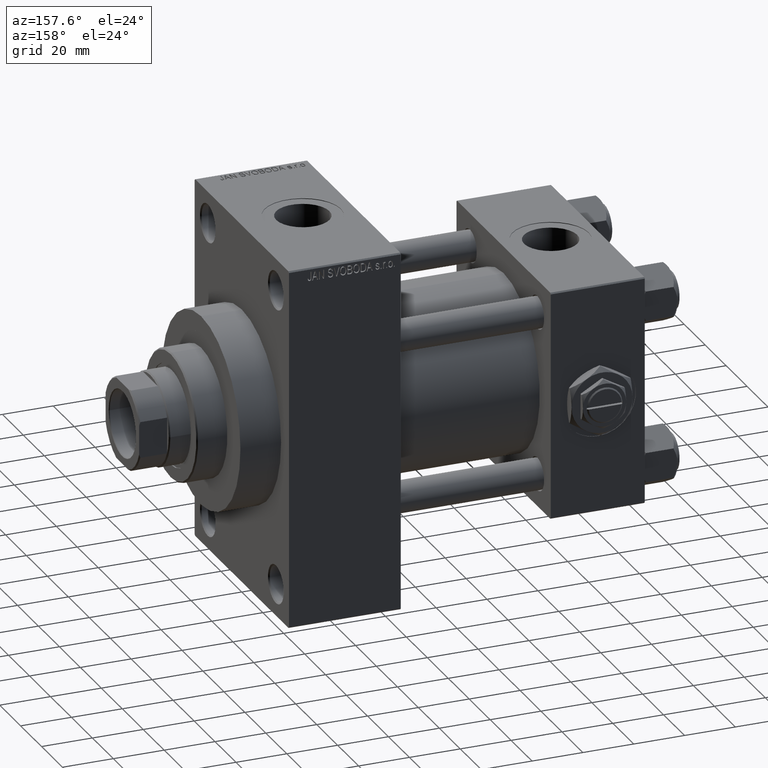
[diagram: clean part render]
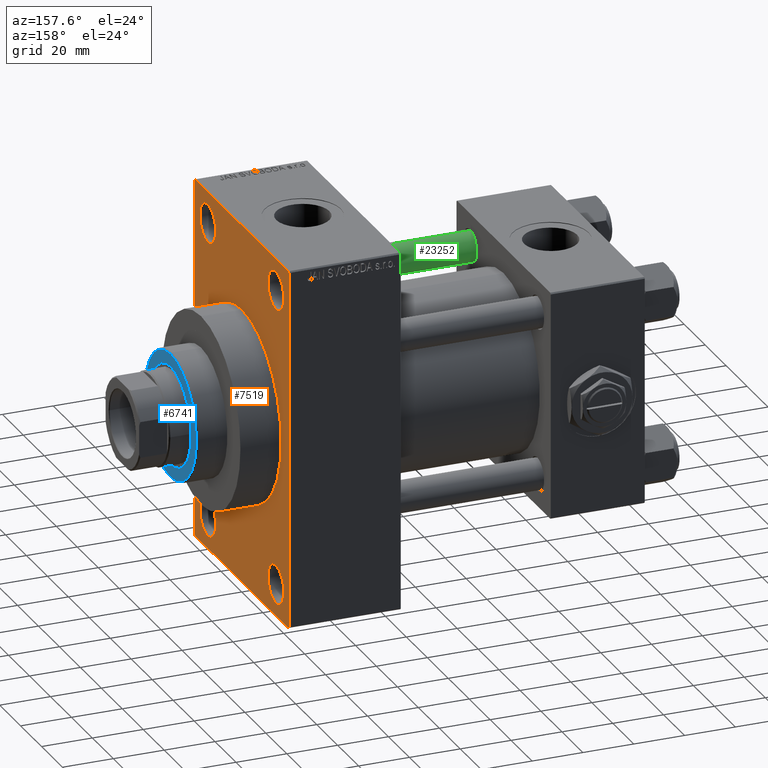
[diagram: same view with three faces highlighted in distinct colors, each labeled with its STEP entity id]
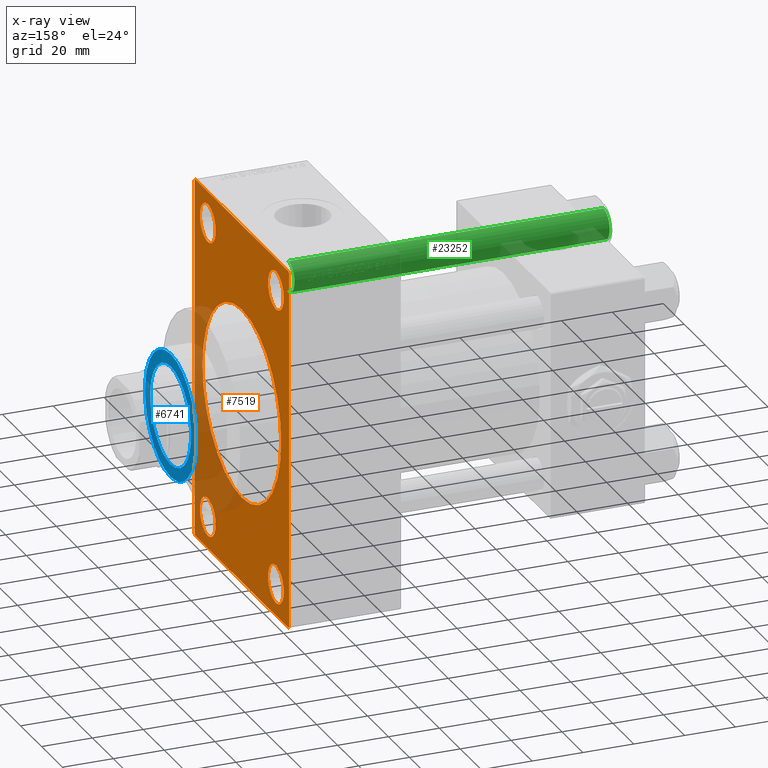
[diagram: x-ray of the same camera — body ghosted, the three highlighted faces saturated]
A machine part, auxiliary view with three faces highlighted in distinct colors.
The next image is the same camera in x-ray (body ghosted, the three faces saturated) — at least one of them is partly hidden behind the body in this view.
Their STEP definitions:

[orange] entity #7519 — the highlighted planar face has unit normal (-1, 0, 0).
#276 = CIRCLE ( 'NONE', #31942, 7.500000000000034639 ) ;
#397 = DIRECTION ( 'NONE',  ( -1.000000000000000000, -0.000000000000000000, -0.000000000000000000 ) ) ;
#498 = DIRECTION ( 'NONE',  ( 0.000000000000000000, 0.000000000000000000, 1.000000000000000000 ) ) ;
#1418 = VERTEX_POINT ( 'NONE', #40749 ) ;
#1526 = CARTESIAN_POINT ( 'NONE',  ( 140.0000000000000000, -32.50000000000001421, 50.99999999999999289 ) ) ;
#1597 = ORIENTED_EDGE ( 'NONE', *, *, #3867, .T. ) ;
#2114 = DIRECTION ( 'NONE',  ( 0.000000000000000000, 0.000000000000000000, -1.000000000000000000 ) ) ;
#2133 = AXIS2_PLACEMENT_3D ( 'NONE', #33799, #31087, #3841 ) ;
#2342 = DIRECTION ( 'NONE',  ( 0.000000000000000000, 0.7071067811865474617, -0.7071067811865474617 ) ) ;
#2411 = PLANE ( 'NONE',  #43664 ) ;
#2593 = CIRCLE ( 'NONE', #30265, 7.500000000000034639 ) ;
#2715 = EDGE_CURVE ( 'NONE', #11949, #48470, #5165, .T. ) ;
#2895 = EDGE_LOOP ( 'NONE', ( #21349, #48209 ) ) ;
#3086 = EDGE_CURVE ( 'NONE', #18240, #35386, #5831, .T. ) ;
#3841 = DIRECTION ( 'NONE',  ( 0.000000000000000000, 0.000000000000000000, 1.000000000000000000 ) ) ;
#3867 = EDGE_CURVE ( 'NONE', #18240, #24997, #38264, .T. ) ;
#3965 = VERTEX_POINT ( 'NONE', #5597 ) ;
#3994 = DIRECTION ( 'NONE',  ( 0.000000000000000000, 0.000000000000000000, 1.000000000000000000 ) ) ;
#4613 = DIRECTION ( 'NONE',  ( 0.000000000000000000, -0.7071067811865474617, 0.7071067811865474617 ) ) ;
#4649 = EDGE_CURVE ( 'NONE', #47817, #24437, #8047, .T. ) ;
#4738 = DIRECTION ( 'NONE',  ( 0.000000000000000000, 0.000000000000000000, -1.000000000000000000 ) ) ;
#4942 = CARTESIAN_POINT ( 'NONE',  ( 140.0000000000000000, 32.49999999999998579, 50.99999999999999289 ) ) ;
#5165 = LINE ( 'NONE', #36077, #34096 ) ;
#5597 = CARTESIAN_POINT ( 'NONE',  ( 140.0000000000000000, -32.50000000000001421, -66.00000000000000000 ) ) ;
#5656 = FACE_BOUND ( 'NONE', #14709, .T. ) ;
#5831 = LINE ( 'NONE', #20928, #30947 ) ;
#5999 = DIRECTION ( 'NONE',  ( 0.000000000000000000, 0.000000000000000000, 1.000000000000000000 ) ) ;
#6233 = CARTESIAN_POINT ( 'NONE',  ( 140.0000000000000000, 45.00000000000000000, -70.49999999999997158 ) ) ;
#7263 = VECTOR ( 'NONE', #4613, 1000.000000000000114 ) ;
#7278 = EDGE_CURVE ( 'NONE', #16093, #42784, #46779, .T. ) ;
#7519 = ADVANCED_FACE ( 'NONE', ( #40288, #5656, #32620, #46757, #47469, #47714 ), #2411, .F. ) ;
#8047 = CIRCLE ( 'NONE', #33362, 37.50000000000000711 ) ;
#9092 = VECTOR ( 'NONE', #2342, 1000.000000000000114 ) ;
#9209 = DIRECTION ( 'NONE',  ( 0.000000000000000000, 0.000000000000000000, 1.000000000000000000 ) ) ;
#9263 = ORIENTED_EDGE ( 'NONE', *, *, #35174, .F. ) ;
#9276 = LINE ( 'NONE', #46631, #42360 ) ;
#10195 = DIRECTION ( 'NONE',  ( -0.000000000000000000, 0.7071067811865474617, 0.7071067811865474617 ) ) ;
#10539 = CIRCLE ( 'NONE', #38168, 7.500000000000020428 ) ;
#10606 = EDGE_CURVE ( 'NONE', #3965, #40500, #2593, .T. ) ;
#10726 = CARTESIAN_POINT ( 'NONE',  ( 140.0000000000000000, -45.00000000000000000, -70.50000000000001421 ) ) ;
#10728 = ORIENTED_EDGE ( 'NONE', *, *, #29197, .T. ) ;
#11148 = CARTESIAN_POINT ( 'NONE',  ( 140.0000000000000000, 32.49999999999998579, -50.99999999999995026 ) ) ;
#11303 = DIRECTION ( 'NONE',  ( 0.000000000000000000, 0.000000000000000000, -1.000000000000000000 ) ) ;
#11557 = CARTESIAN_POINT ( 'NONE',  ( 140.0000000000000000, 0.000000000000000000, 37.50000000000000711 ) ) ;
#11949 = VERTEX_POINT ( 'NONE', #41472 ) ;
#12007 = ORIENTED_EDGE ( 'NONE', *, *, #12896, .T. ) ;
#12318 = DIRECTION ( 'NONE',  ( 0.000000000000000000, 0.000000000000000000, 1.000000000000000000 ) ) ;
#12438 = CARTESIAN_POINT ( 'NONE',  ( 140.0000000000000000, 0.000000000000000000, 0.000000000000000000 ) ) ;
#12864 = DIRECTION ( 'NONE',  ( -1.000000000000000000, 0.000000000000000000, -0.000000000000000000 ) ) ;
#12896 = EDGE_CURVE ( 'NONE', #48470, #27416, #21174, .T. ) ;
#13643 = AXIS2_PLACEMENT_3D ( 'NONE', #14066, #22432, #11303 ) ;
#13820 = DIRECTION ( 'NONE',  ( -0.000000000000000000, 0.000000000000000000, 1.000000000000000000 ) ) ;
#14066 = CARTESIAN_POINT ( 'NONE',  ( 140.0000000000000000, 0.000000000000000000, 0.000000000000000000 ) ) ;
#14216 = CIRCLE ( 'NONE', #44236, 7.500000000000034639 ) ;
#14709 = EDGE_LOOP ( 'NONE', ( #24208, #22250 ) ) ;
#15833 = VERTEX_POINT ( 'NONE', #1526 ) ;
#16093 = VERTEX_POINT ( 'NONE', #32384 ) ;
#16159 = DIRECTION ( 'NONE',  ( -1.000000000000000000, -0.000000000000000000, -0.000000000000000000 ) ) ;
#17253 = VERTEX_POINT ( 'NONE', #34050 ) ;
#17487 = EDGE_LOOP ( 'NONE', ( #29442, #9263 ) ) ;
#18231 = EDGE_CURVE ( 'NONE', #45587, #17253, #28888, .T. ) ;
#18240 = VERTEX_POINT ( 'NONE', #34625 ) ;
#18890 = ORIENTED_EDGE ( 'NONE', *, *, #35125, .T. ) ;
#20604 = DIRECTION ( 'NONE',  ( 0.000000000000000000, 0.000000000000000000, 1.000000000000000000 ) ) ;
#20928 = CARTESIAN_POINT ( 'NONE',  ( 140.0000000000000000, 45.00000000000000000, 71.00000000000000000 ) ) ;
#21174 = LINE ( 'NONE', #36251, #9092 ) ;
#21349 = ORIENTED_EDGE ( 'NONE', *, *, #40271, .T. ) ;
#21821 = LINE ( 'NONE', #6233, #34313 ) ;
#21961 = CARTESIAN_POINT ( 'NONE',  ( 140.0000000000000000, 44.50000000000002842, 71.00000000000000000 ) ) ;
#22250 = ORIENTED_EDGE ( 'NONE', *, *, #42563, .T. ) ;
#22286 = EDGE_CURVE ( 'NONE', #1418, #15833, #30574, .T. ) ;
#22432 = DIRECTION ( 'NONE',  ( 1.000000000000000000, 0.000000000000000000, 0.000000000000000000 ) ) ;
#22831 = CARTESIAN_POINT ( 'NONE',  ( 140.0000000000000000, -44.50000000000000000, -71.00000000000000000 ) ) ;
#22934 = CARTESIAN_POINT ( 'NONE',  ( 140.0000000000000000, 32.49999999999998579, 58.50000000000000711 ) ) ;
#23317 = CARTESIAN_POINT ( 'NONE',  ( 140.0000000000000000, 32.49999999999998579, -58.49999999999998579 ) ) ;
#23455 = AXIS2_PLACEMENT_3D ( 'NONE', #47424, #42566, #47671 ) ;
#23888 = ORIENTED_EDGE ( 'NONE', *, *, #47501, .F. ) ;
#24208 = ORIENTED_EDGE ( 'NONE', *, *, #10606, .T. ) ;
#24437 = VERTEX_POINT ( 'NONE', #44117 ) ;
#24518 = EDGE_LOOP ( 'NONE', ( #41946, #46740 ) ) ;
#24655 = CARTESIAN_POINT ( 'NONE',  ( 140.0000000000000000, 45.00000000000000000, -70.49999999999997158 ) ) ;
#24997 = VERTEX_POINT ( 'NONE', #21961 ) ;
#27416 = VERTEX_POINT ( 'NONE', #22831 ) ;
#27529 = DIRECTION ( 'NONE',  ( 1.000000000000000000, 0.000000000000000000, 0.000000000000000000 ) ) ;
#27566 = DIRECTION ( 'NONE',  ( -1.000000000000000000, -0.000000000000000000, -0.000000000000000000 ) ) ;
#28012 = CARTESIAN_POINT ( 'NONE',  ( 140.0000000000000000, 32.49999999999998579, -58.49999999999998579 ) ) ;
#28128 = VECTOR ( 'NONE', #41737, 1000.000000000000114 ) ;
#28888 = CIRCLE ( 'NONE', #23455, 7.500000000000020428 ) ;
#29197 = EDGE_CURVE ( 'NONE', #42784, #16093, #14216, .T. ) ;
#29442 = ORIENTED_EDGE ( 'NONE', *, *, #4649, .F. ) ;
#29882 = LINE ( 'NONE', #33576, #43675 ) ;
#30265 = AXIS2_PLACEMENT_3D ( 'NONE', #39902, #27566, #5999 ) ;
#30574 = CIRCLE ( 'NONE', #2133, 7.500000000000027534 ) ;
#30947 = VECTOR ( 'NONE', #2114, 1000.000000000000000 ) ;
#31087 = DIRECTION ( 'NONE',  ( -1.000000000000000000, -0.000000000000000000, -0.000000000000000000 ) ) ;
#31768 = AXIS2_PLACEMENT_3D ( 'NONE', #28012, #40348, #9209 ) ;
#31942 = AXIS2_PLACEMENT_3D ( 'NONE', #48162, #16159, #20604 ) ;
#32384 = CARTESIAN_POINT ( 'NONE',  ( 140.0000000000000000, 32.49999999999998579, -66.00000000000000000 ) ) ;
#32620 = FACE_BOUND ( 'NONE', #36300, .T. ) ;
#33332 = DIRECTION ( 'NONE',  ( 0.000000000000000000, -1.000000000000000000, 0.000000000000000000 ) ) ;
#33362 = AXIS2_PLACEMENT_3D ( 'NONE', #12438, #27529, #4738 ) ;
#33576 = CARTESIAN_POINT ( 'NONE',  ( 140.0000000000000000, 45.00000000000000000, 71.00000000000000000 ) ) ;
#33799 = CARTESIAN_POINT ( 'NONE',  ( 140.0000000000000000, -32.50000000000001421, 58.50000000000001421 ) ) ;
#34050 = CARTESIAN_POINT ( 'NONE',  ( 140.0000000000000000, 32.49999999999998579, 66.00000000000002842 ) ) ;
#34096 = VECTOR ( 'NONE', #35356, 1000.000000000000000 ) ;
#34313 = VECTOR ( 'NONE', #10195, 1000.000000000000114 ) ;
#34552 = CARTESIAN_POINT ( 'NONE',  ( 140.0000000000000000, -45.00000000000000000, 70.49999999999997158 ) ) ;
#34560 = CARTESIAN_POINT ( 'NONE',  ( 140.0000000000000000, 44.50000000000002842, 71.00000000000000000 ) ) ;
#34625 = CARTESIAN_POINT ( 'NONE',  ( 140.0000000000000000, 45.00000000000000000, 70.50000000000001421 ) ) ;
#35125 = EDGE_CURVE ( 'NONE', #24997, #44883, #29882, .T. ) ;
#35145 = VERTEX_POINT ( 'NONE', #41013 ) ;
#35174 = EDGE_CURVE ( 'NONE', #24437, #47817, #47627, .T. ) ;
#35356 = DIRECTION ( 'NONE',  ( 0.000000000000000000, 0.000000000000000000, -1.000000000000000000 ) ) ;
#35386 = VERTEX_POINT ( 'NONE', #24655 ) ;
#35504 = ORIENTED_EDGE ( 'NONE', *, *, #2715, .T. ) ;
#36077 = CARTESIAN_POINT ( 'NONE',  ( 140.0000000000000000, -45.00000000000000000, 71.00000000000000000 ) ) ;
#36251 = CARTESIAN_POINT ( 'NONE',  ( 140.0000000000000000, -44.50000000000002842, -71.00000000000000000 ) ) ;
#36300 = EDGE_LOOP ( 'NONE', ( #44156, #10728 ) ) ;
#36772 = ORIENTED_EDGE ( 'NONE', *, *, #47245, .T. ) ;
#37385 = EDGE_LOOP ( 'NONE', ( #35504, #12007, #23888, #39062, #45404, #1597, #18890, #36772 ) ) ;
#37421 = DIRECTION ( 'NONE',  ( -1.000000000000000000, -0.000000000000000000, -0.000000000000000000 ) ) ;
#37813 = CARTESIAN_POINT ( 'NONE',  ( 140.0000000000000000, -32.50000000000001421, -50.99999999999995026 ) ) ;
#38116 = EDGE_CURVE ( 'NONE', #17253, #45587, #10539, .T. ) ;
#38168 = AXIS2_PLACEMENT_3D ( 'NONE', #22934, #397, #12318 ) ;
#38264 = LINE ( 'NONE', #34560, #7263 ) ;
#39062 = ORIENTED_EDGE ( 'NONE', *, *, #39390, .T. ) ;
#39203 = DIRECTION ( 'NONE',  ( 0.000000000000000000, -1.000000000000000000, 0.000000000000000000 ) ) ;
#39390 = EDGE_CURVE ( 'NONE', #35145, #35386, #21821, .T. ) ;
#39902 = CARTESIAN_POINT ( 'NONE',  ( 140.0000000000000000, -32.50000000000001421, -58.49999999999998579 ) ) ;
#40271 = EDGE_CURVE ( 'NONE', #15833, #1418, #43809, .T. ) ;
#40288 = FACE_BOUND ( 'NONE', #2895, .T. ) ;
#40348 = DIRECTION ( 'NONE',  ( -1.000000000000000000, -0.000000000000000000, -0.000000000000000000 ) ) ;
#40500 = VERTEX_POINT ( 'NONE', #37813 ) ;
#40749 = CARTESIAN_POINT ( 'NONE',  ( 140.0000000000000000, -32.50000000000001421, 66.00000000000004263 ) ) ;
#41013 = CARTESIAN_POINT ( 'NONE',  ( 140.0000000000000000, 44.49999999999997158, -71.00000000000000000 ) ) ;
#41353 = CARTESIAN_POINT ( 'NONE',  ( 140.0000000000000000, -32.50000000000001421, 58.50000000000001421 ) ) ;
#41472 = CARTESIAN_POINT ( 'NONE',  ( 140.0000000000000000, -45.00000000000000000, 70.49999999999997158 ) ) ;
#41737 = DIRECTION ( 'NONE',  ( -0.000000000000000000, -0.7071067811865474617, -0.7071067811865474617 ) ) ;
#41946 = ORIENTED_EDGE ( 'NONE', *, *, #18231, .T. ) ;
#41980 = LINE ( 'NONE', #34552, #28128 ) ;
#42191 = CARTESIAN_POINT ( 'NONE',  ( 140.0000000000000000, -44.49999999999994316, 71.00000000000000000 ) ) ;
#42360 = VECTOR ( 'NONE', #39203, 1000.000000000000000 ) ;
#42563 = EDGE_CURVE ( 'NONE', #40500, #3965, #276, .T. ) ;
#42566 = DIRECTION ( 'NONE',  ( -1.000000000000000000, -0.000000000000000000, -0.000000000000000000 ) ) ;
#42784 = VERTEX_POINT ( 'NONE', #11148 ) ;
#43519 = CARTESIAN_POINT ( 'NONE',  ( 140.0000000000000000, 0.000000000000000000, 0.000000000000000000 ) ) ;
#43664 = AXIS2_PLACEMENT_3D ( 'NONE', #43519, #12864, #13820 ) ;
#43675 = VECTOR ( 'NONE', #33332, 1000.000000000000000 ) ;
#43809 = CIRCLE ( 'NONE', #47000, 7.500000000000027534 ) ;
#44117 = CARTESIAN_POINT ( 'NONE',  ( 140.0000000000000000, 4.592425496802575156E-15, -37.50000000000000711 ) ) ;
#44156 = ORIENTED_EDGE ( 'NONE', *, *, #7278, .T. ) ;
#44236 = AXIS2_PLACEMENT_3D ( 'NONE', #23317, #37421, #3994 ) ;
#44883 = VERTEX_POINT ( 'NONE', #42191 ) ;
#45058 = DIRECTION ( 'NONE',  ( -1.000000000000000000, -0.000000000000000000, -0.000000000000000000 ) ) ;
#45404 = ORIENTED_EDGE ( 'NONE', *, *, #3086, .F. ) ;
#45587 = VERTEX_POINT ( 'NONE', #4942 ) ;
#46631 = CARTESIAN_POINT ( 'NONE',  ( 140.0000000000000000, 45.00000000000000000, -71.00000000000000000 ) ) ;
#46740 = ORIENTED_EDGE ( 'NONE', *, *, #38116, .T. ) ;
#46757 = FACE_BOUND ( 'NONE', #24518, .T. ) ;
#46779 = CIRCLE ( 'NONE', #31768, 7.500000000000034639 ) ;
#47000 = AXIS2_PLACEMENT_3D ( 'NONE', #41353, #45058, #498 ) ;
#47245 = EDGE_CURVE ( 'NONE', #44883, #11949, #41980, .T. ) ;
#47424 = CARTESIAN_POINT ( 'NONE',  ( 140.0000000000000000, 32.49999999999998579, 58.50000000000000711 ) ) ;
#47469 = FACE_BOUND ( 'NONE', #17487, .T. ) ;
#47501 = EDGE_CURVE ( 'NONE', #35145, #27416, #9276, .T. ) ;
#47627 = CIRCLE ( 'NONE', #13643, 37.50000000000000711 ) ;
#47671 = DIRECTION ( 'NONE',  ( 0.000000000000000000, 0.000000000000000000, 1.000000000000000000 ) ) ;
#47714 = FACE_OUTER_BOUND ( 'NONE', #37385, .T. ) ;
#47817 = VERTEX_POINT ( 'NONE', #11557 ) ;
#48162 = CARTESIAN_POINT ( 'NONE',  ( 140.0000000000000000, -32.50000000000001421, -58.49999999999998579 ) ) ;
#48209 = ORIENTED_EDGE ( 'NONE', *, *, #22286, .T. ) ;
#48470 = VERTEX_POINT ( 'NONE', #10726 ) ;

[blue] entity #6741 — the highlighted planar face has unit normal (1, 0, 0).
#244 = AXIS2_PLACEMENT_3D ( 'NONE', #33342, #4375, #38534 ) ;
#638 = EDGE_CURVE ( 'NONE', #27920, #11093, #10315, .T. ) ;
#1074 = DIRECTION ( 'NONE',  ( 0.000000000000000000, 0.000000000000000000, 1.000000000000000000 ) ) ;
#3746 = DIRECTION ( 'NONE',  ( 1.000000000000000000, 0.000000000000000000, 0.000000000000000000 ) ) ;
#3970 = CIRCLE ( 'NONE', #38795, 24.50000000000001066 ) ;
#4375 = DIRECTION ( 'NONE',  ( 0.000000000000000000, 0.000000000000000000, 1.000000000000000000 ) ) ;
#5299 = FACE_OUTER_BOUND ( 'NONE', #40576, .T. ) ;
#6741 = ADVANCED_FACE ( 'NONE', ( #30788, #5299 ), #24357, .T. ) ;
#9553 = AXIS2_PLACEMENT_3D ( 'NONE', #21151, #43197, #39955 ) ;
#10315 = CIRCLE ( 'NONE', #9553, 19.50000000000000000 ) ;
#11093 = VERTEX_POINT ( 'NONE', #43864 ) ;
#11372 = CARTESIAN_POINT ( 'NONE',  ( -24.50000000000001066, 0.000000000000000000, 55.26000000000000512 ) ) ;
#12514 = EDGE_LOOP ( 'NONE', ( #27474, #29014 ) ) ;
#12805 = AXIS2_PLACEMENT_3D ( 'NONE', #12977, #1074, #46874 ) ;
#12977 = CARTESIAN_POINT ( 'NONE',  ( 0.000000000000000000, 0.000000000000000000, 55.26000000000000512 ) ) ;
#15185 = VERTEX_POINT ( 'NONE', #11372 ) ;
#16909 = VERTEX_POINT ( 'NONE', #42802 ) ;
#21151 = CARTESIAN_POINT ( 'NONE',  ( 0.000000000000000000, 0.000000000000000000, 55.26000000000000512 ) ) ;
#21416 = CARTESIAN_POINT ( 'NONE',  ( -19.50000000000000000, 2.388061258337338939E-15, 55.26000000000000512 ) ) ;
#24357 = PLANE ( 'NONE',  #12805 ) ;
#24670 = CIRCLE ( 'NONE', #37295, 19.50000000000000000 ) ;
#25912 = DIRECTION ( 'NONE',  ( 0.000000000000000000, 0.000000000000000000, 1.000000000000000000 ) ) ;
#26140 = CARTESIAN_POINT ( 'NONE',  ( 0.000000000000000000, 0.000000000000000000, 55.26000000000000512 ) ) ;
#26761 = DIRECTION ( 'NONE',  ( 0.000000000000000000, 0.000000000000000000, 1.000000000000000000 ) ) ;
#27474 = ORIENTED_EDGE ( 'NONE', *, *, #34386, .F. ) ;
#27920 = VERTEX_POINT ( 'NONE', #21416 ) ;
#28251 = EDGE_CURVE ( 'NONE', #15185, #16909, #3970, .T. ) ;
#29014 = ORIENTED_EDGE ( 'NONE', *, *, #638, .F. ) ;
#29981 = ORIENTED_EDGE ( 'NONE', *, *, #38033, .T. ) ;
#30788 = FACE_BOUND ( 'NONE', #12514, .T. ) ;
#32677 = CIRCLE ( 'NONE', #244, 24.50000000000001066 ) ;
#33342 = CARTESIAN_POINT ( 'NONE',  ( 0.000000000000000000, 0.000000000000000000, 55.26000000000000512 ) ) ;
#34386 = EDGE_CURVE ( 'NONE', #11093, #27920, #24670, .T. ) ;
#36557 = DIRECTION ( 'NONE',  ( 1.000000000000000000, 0.000000000000000000, 0.000000000000000000 ) ) ;
#37295 = AXIS2_PLACEMENT_3D ( 'NONE', #26140, #25912, #36557 ) ;
#38033 = EDGE_CURVE ( 'NONE', #16909, #15185, #32677, .T. ) ;
#38534 = DIRECTION ( 'NONE',  ( 1.000000000000000000, 0.000000000000000000, 0.000000000000000000 ) ) ;
#38795 = AXIS2_PLACEMENT_3D ( 'NONE', #45575, #26761, #3746 ) ;
#39955 = DIRECTION ( 'NONE',  ( 1.000000000000000000, 0.000000000000000000, 0.000000000000000000 ) ) ;
#40576 = EDGE_LOOP ( 'NONE', ( #42760, #29981 ) ) ;
#42760 = ORIENTED_EDGE ( 'NONE', *, *, #28251, .T. ) ;
#42802 = CARTESIAN_POINT ( 'NONE',  ( 24.50000000000001066, 3.031000827889700044E-15, 55.26000000000000512 ) ) ;
#43197 = DIRECTION ( 'NONE',  ( 0.000000000000000000, 0.000000000000000000, 1.000000000000000000 ) ) ;
#43864 = CARTESIAN_POINT ( 'NONE',  ( 19.50000000000000000, 0.000000000000000000, 55.26000000000000512 ) ) ;
#45575 = CARTESIAN_POINT ( 'NONE',  ( 0.000000000000000000, 0.000000000000000000, 55.26000000000000512 ) ) ;
#46874 = DIRECTION ( 'NONE',  ( 1.000000000000000000, 0.000000000000000000, -0.000000000000000000 ) ) ;

[green] entity #23252 — the highlighted cylindrical surface (edge-blend (fillet) strip) has radius 6 mm, axis along (-1, 0, -0).
#851 = DIRECTION ( 'NONE',  ( -0.000000000000000000, -0.000000000000000000, -1.000000000000000000 ) ) ;
#2519 = CIRCLE ( 'NONE', #8880, 6.000000000000000888 ) ;
#4068 = CARTESIAN_POINT ( 'NONE',  ( -6.000000000000000888, 0.000000000000000000, 125.0000000000000000 ) ) ;
#4586 = ORIENTED_EDGE ( 'NONE', *, *, #37145, .T. ) ;
#6286 = VECTOR ( 'NONE', #35970, 1000.000000000000000 ) ;
#7108 = CARTESIAN_POINT ( 'NONE',  ( 0.000000000000000000, 0.000000000000000000, 124.5000000000000000 ) ) ;
#8250 = EDGE_CURVE ( 'NONE', #20383, #37981, #2519, .T. ) ;
#8880 = AXIS2_PLACEMENT_3D ( 'NONE', #22867, #30801, #19659 ) ;
#11705 = EDGE_LOOP ( 'NONE', ( #48265, #4586, #45743, #13719 ) ) ;
#13674 = VERTEX_POINT ( 'NONE', #23434 ) ;
#13719 = ORIENTED_EDGE ( 'NONE', *, *, #8250, .T. ) ;
#14300 = CARTESIAN_POINT ( 'NONE',  ( -6.000000000000000888, 0.000000000000000000, 124.5000000000000000 ) ) ;
#16455 = LINE ( 'NONE', #17182, #6286 ) ;
#16827 = CIRCLE ( 'NONE', #48452, 6.000000000000000888 ) ;
#17182 = CARTESIAN_POINT ( 'NONE',  ( 6.000000000000000888, 7.347880794884120722E-16, 125.0000000000000000 ) ) ;
#18505 = CARTESIAN_POINT ( 'NONE',  ( 6.000000000000000888, 7.347880794884120722E-16, 0.4999999999999865663 ) ) ;
#19659 = DIRECTION ( 'NONE',  ( 1.000000000000000000, 0.000000000000000000, 0.000000000000000000 ) ) ;
#20136 = CARTESIAN_POINT ( 'NONE',  ( 0.000000000000000000, 0.000000000000000000, 125.0000000000000000 ) ) ;
#20383 = VERTEX_POINT ( 'NONE', #28338 ) ;
#22867 = CARTESIAN_POINT ( 'NONE',  ( 0.000000000000000000, 0.000000000000000000, 0.4999999999999865663 ) ) ;
#23252 = ADVANCED_FACE ( 'NONE', ( #27562 ), #42654, .T. ) ;
#23434 = CARTESIAN_POINT ( 'NONE',  ( 6.000000000000000888, 7.347880794884120722E-16, 124.5000000000000000 ) ) ;
#23520 = AXIS2_PLACEMENT_3D ( 'NONE', #20136, #38933, #42411 ) ;
#23644 = LINE ( 'NONE', #4068, #29256 ) ;
#25924 = DIRECTION ( 'NONE',  ( 0.000000000000000000, 0.000000000000000000, -1.000000000000000000 ) ) ;
#27165 = EDGE_CURVE ( 'NONE', #47029, #20383, #23644, .T. ) ;
#27562 = FACE_OUTER_BOUND ( 'NONE', #11705, .T. ) ;
#28338 = CARTESIAN_POINT ( 'NONE',  ( -6.000000000000000888, 0.000000000000000000, 0.4999999999999865663 ) ) ;
#29074 = EDGE_CURVE ( 'NONE', #13674, #37981, #16455, .T. ) ;
#29256 = VECTOR ( 'NONE', #851, 1000.000000000000000 ) ;
#30801 = DIRECTION ( 'NONE',  ( -0.000000000000000000, -0.000000000000000000, 1.000000000000000000 ) ) ;
#35970 = DIRECTION ( 'NONE',  ( -0.000000000000000000, -0.000000000000000000, -1.000000000000000000 ) ) ;
#37145 = EDGE_CURVE ( 'NONE', #13674, #47029, #16827, .T. ) ;
#37981 = VERTEX_POINT ( 'NONE', #18505 ) ;
#38933 = DIRECTION ( 'NONE',  ( -0.000000000000000000, -0.000000000000000000, -1.000000000000000000 ) ) ;
#42411 = DIRECTION ( 'NONE',  ( -1.000000000000000000, 0.000000000000000000, 0.000000000000000000 ) ) ;
#42654 = CYLINDRICAL_SURFACE ( 'NONE', #23520, 6.000000000000000888 ) ;
#44965 = DIRECTION ( 'NONE',  ( 1.000000000000000000, 0.000000000000000000, 0.000000000000000000 ) ) ;
#45743 = ORIENTED_EDGE ( 'NONE', *, *, #27165, .T. ) ;
#47029 = VERTEX_POINT ( 'NONE', #14300 ) ;
#48265 = ORIENTED_EDGE ( 'NONE', *, *, #29074, .F. ) ;
#48452 = AXIS2_PLACEMENT_3D ( 'NONE', #7108, #25924, #44965 ) ;